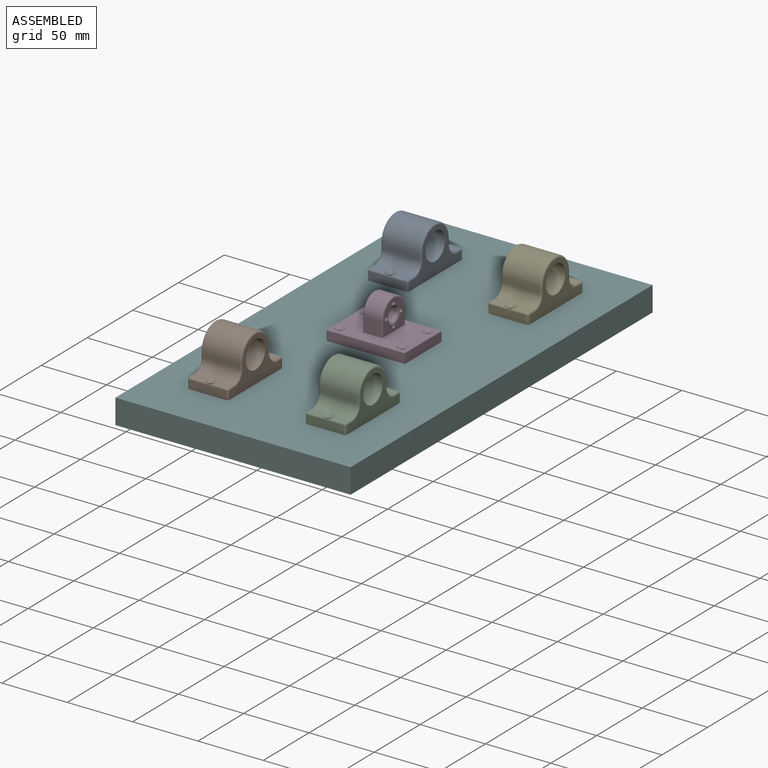
[diagram: assembled view]
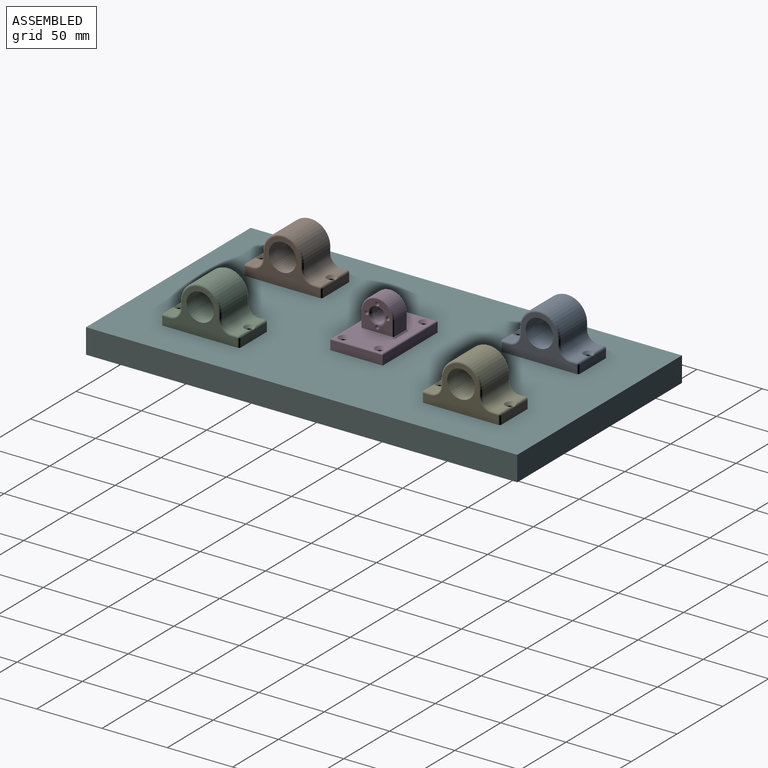
[diagram: assembled view, second angle]
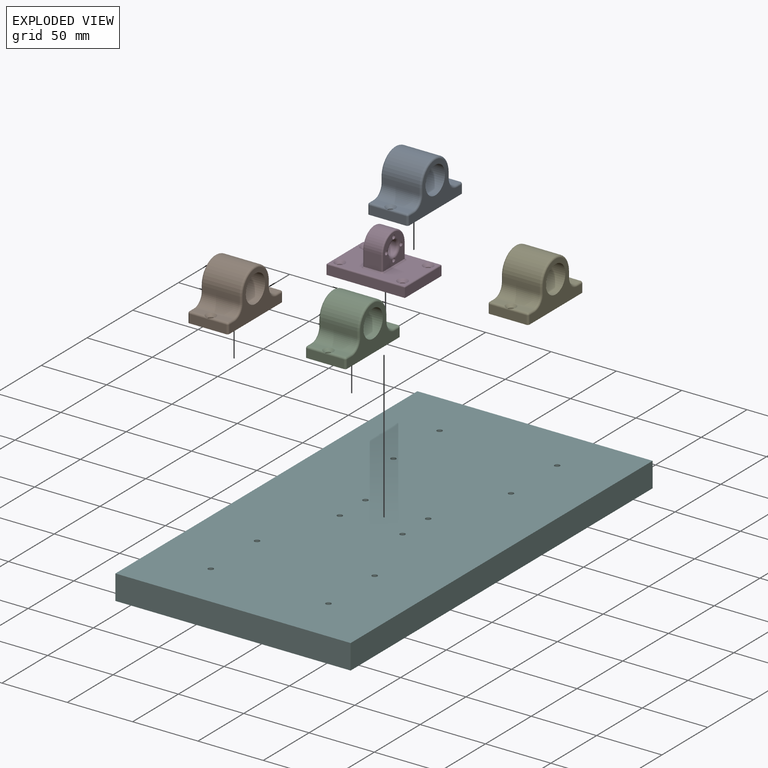
[diagram: exploded view]
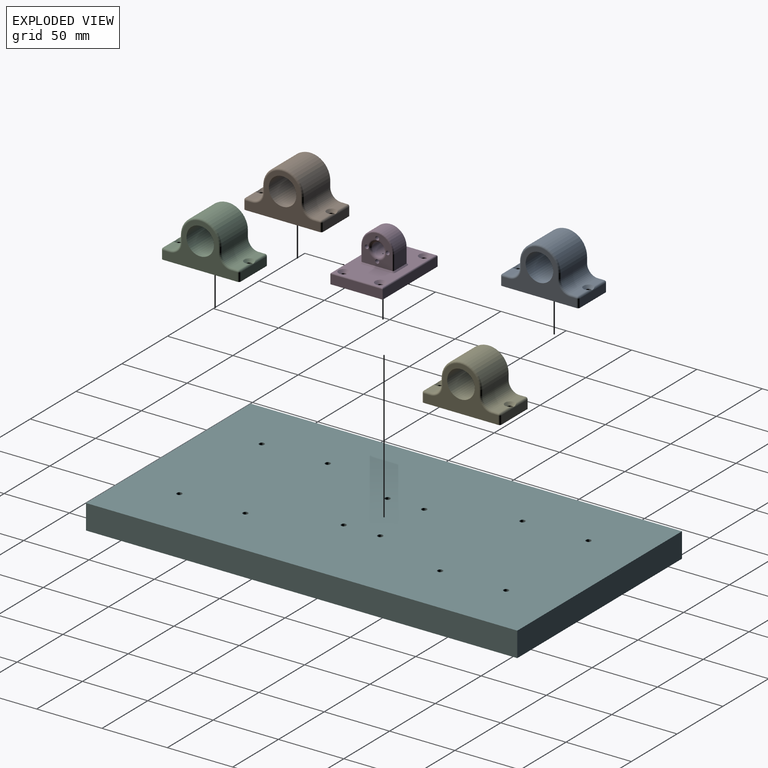
[diagram: exploded view, second angle]
ASSEMBLY  parts=6 mates=5
PART A: 47 faces, bbox 61.5x37.3x31 mm
  f0: cylinder r=9.5mm len=19mm, axis (0,0,1), area 59.7mm2, adj f12,f21
  f1: plane 11.67x5mm, normal (0,1,0), area 51.9mm2, adj f14,f19,f30,f35
  f2: plane 11.67x5mm, normal (0,1,0), area 51.9mm2, adj f13,f17,f34,f40
  f3: plane 60x31mm, normal (0,-1,0), area 1832.9mm2, adj f4,f10,f11,f12,f15,f16,f28,f31
  f4: plane 28x6.5mm, normal (1,0,0), area 182mm2, adj f3,f28,f34,f36
  f5: plane 11.67x5mm, normal (0,1,0), area 51.9mm2, adj f13,f17,f29,f34
  f6: plane 28x4.5mm, normal (1,0,0), area 126mm2, adj f7,f13,f24,f44
  f7: cylinder r=15.5mm len=31mm, axis (0,0,-1), area 1363.5mm2, adj f6,f8,f23,f46
  f8: plane 28x4.5mm, normal (-1,0,0), area 126mm2, adj f7,f14,f25,f45
  f9: plane 11.67x5mm, normal (0,1,0), area 51.9mm2, adj f14,f19,f35,f41
  f10: plane 28x6.5mm, normal (-1,0,0), area 182mm2, adj f3,f31,f35,f37
  f11: plane 57x34.5mm, normal (0,0,1), area 759.4mm2, adj f3,f22,f23,f24,f25,f26,f27,f28
  f12: plane 57x34.5mm, normal (0,0,-1), area 825.6mm2, adj f0,f3,f36,f37,f40,f41,f42,f43
  f13: cylinder r=8mm len=28mm, axis (0,0,-1), area 350mm2, adj f2,f5,f6,f18,f26,f42
  f14: cylinder r=8mm len=28mm, axis (0,0,1), area 350mm2, adj f1,f8,f9,f20,f27,f43
  f15: cylinder r=2mm len=6mm, axis (0,1,0), area 75.4mm2, adj f3,f19,f20
  f16: cylinder r=2mm len=6mm, axis (0,1,0), area 75.4mm2, adj f3,f17,f18
  f17: cone r=4mm half-angle=45deg, axis (0,1,0), area 36.9mm2, adj f2,f5,f16,f18,f34
  f18: bspline ~4.66x2.23mm, area 10.1mm2, adj f13,f16,f17
  f19: cone r=2mm half-angle=45deg, axis (0,1,0), area 36.9mm2, adj f1,f9,f15,f20,f35
  f20: bspline ~4.66x2.23mm, area 10.1mm2, adj f14,f15,f19
  f21: plane 21.1x21.1mm, normal (0,0,1), area 66.1mm2, adj f0,f22
  f22: cylinder r=10.55mm len=30mm, axis (0,0,1), area 1988.6mm2, adj f11,f21
  f23: torus R=14mm, axis (0,0,1), area 110.7mm2, adj f7,f11,f24,f25
  f24: cylinder r=1.5mm len=4.5mm, axis (0,-1,0), area 10.6mm2, adj f6,f11,f23,f26
  f25: cylinder r=1.5mm len=4.5mm, axis (0,1,0), area 10.6mm2, adj f8,f11,f23,f27
  f26: torus R=9.5mm, axis (0,0,1), area 31.6mm2, adj f11,f13,f24,f29
  f27: torus R=9.5mm, axis (0,0,1), area 31.6mm2, adj f11,f14,f25,f30
  f28: cylinder r=1.5mm len=6.5mm, axis (0,-1,0), area 15.3mm2, adj f3,f4,f11,f32
  f29: cylinder r=1.5mm len=5mm, axis (1,0,0), area 11.8mm2, adj f5,f11,f26,f32
  f30: cylinder r=1.5mm len=5mm, axis (1,0,0), area 11.8mm2, adj f1,f11,f27,f33
  f31: cylinder r=1.5mm len=6.5mm, axis (0,1,0), area 15.3mm2, adj f3,f10,f11,f33
  f32: sphere r=1.5mm, area 3.5mm2, adj f28,f29,f34
  f33: sphere r=1.5mm, area 3.5mm2, adj f30,f31,f35
  f34: cylinder r=1.5mm len=28mm, axis (0,0,-1), area 57.2mm2, adj f2,f4,f5,f17,f32,f38
  f35: cylinder r=1.5mm len=28mm, axis (0,0,1), area 57.2mm2, adj f1,f9,f10,f19,f33,f39
  f36: cylinder r=1.5mm len=6.5mm, axis (0,1,0), area 15.3mm2, adj f3,f4,f12,f38
  f37: cylinder r=1.5mm len=6.5mm, axis (0,-1,0), area 15.3mm2, adj f3,f10,f12,f39
  f38: sphere r=1.5mm, area 3.5mm2, adj f34,f36,f40
  f39: sphere r=1.5mm, area 4.2mm2, adj f35,f37,f41
  f40: cylinder r=1.5mm len=5mm, axis (-1,0,0), area 11.8mm2, adj f2,f12,f38,f42
  f41: cylinder r=1.5mm len=5mm, axis (-1,0,0), area 11.8mm2, adj f9,f12,f39,f43
  f42: torus R=9.5mm, axis (0,0,1), area 31.6mm2, adj f12,f13,f40,f44
  f43: torus R=9.5mm, axis (0,0,1), area 31.6mm2, adj f12,f14,f41,f45
  f44: cylinder r=1.5mm len=4.5mm, axis (0,1,0), area 10.6mm2, adj f6,f12,f42,f46
  f45: cylinder r=1.5mm len=4.5mm, axis (0,-1,0), area 10.6mm2, adj f8,f12,f43,f46
  f46: torus R=14mm, axis (0,0,1), area 110.7mm2, adj f7,f12,f44,f45
PART B: same geometry as A
PART C: same geometry as A
PART D: 71 faces, bbox 40x34x60 mm
  f0: cylinder r=1.5mm len=12mm, axis (0,0,1), area 113mm2, adj f14,f16,f25
  f1: cylinder r=1.5mm len=12mm, axis (0,0,1), area 113mm2, adj f14,f16,f32
  f2: cylinder r=1.5mm len=12mm, axis (0,0,1), area 113mm2, adj f14,f16,f39
  f3: cylinder r=1.5mm len=12mm, axis (0,0,1), area 113mm2, adj f14,f16,f46
  f4: cylinder r=5.05mm len=13mm, axis (0,0,1), area 412.5mm2, adj f15,f16
  f5: plane 40x7mm, normal (0,0,-1), area 280mm2, adj f9,f10,f12,f61
  f6: plane 13x11.5mm, normal (1,0,0), area 149.5mm2, adj f8,f53,f56,f63
  f7: plane 13x11.5mm, normal (-1,0,0), area 149.5mm2, adj f8,f55,f58,f70
  f8: cylinder r=12.5mm len=25mm, axis (0,0,-1), area 510.5mm2, adj f6,f7,f54,f57
  f9: plane 60x40mm, normal (0,-1,0), area 2349.7mm2, adj f5,f10,f12,f13,f17,f18,f19,f20
  f10: plane 60x7mm, normal (1,0,0), area 420mm2, adj f5,f9,f13,f62
  f11: plane 58x38mm, normal (0,1,0), area 1547.4mm2, adj f21,f22,f23,f24,f59,f60,f61,f62
  f12: plane 60x7mm, normal (-1,0,0), area 420mm2, adj f5,f9,f13,f59
  f13: plane 40x7mm, normal (0,0,1), area 280mm2, adj f9,f10,f12,f60
  f14: plane 23x23mm, normal (0,0,1), area 291.1mm2, adj f0,f1,f2,f3,f16,f56,f57,f58
  f15: plane 23x23mm, normal (0,0,-1), area 275.6mm2, adj f4,f26,f27,f28,f29,f30,f31,f33
  f16: torus R=7.05mm, axis (0,0,1), area 110.7mm2, adj f0,f1,f2,f3,f4,f14
  f17: cylinder r=2mm len=6mm, axis (0,1,0), area 75.4mm2, adj f9,f24
  f18: cylinder r=2mm len=6mm, axis (0,1,0), area 75.4mm2, adj f9,f23
  f19: cylinder r=2mm len=6mm, axis (0,1,0), area 75.4mm2, adj f9,f22
  f20: cylinder r=2mm len=6mm, axis (0,1,0), area 75.4mm2, adj f9,f21
  f21: cone r=2mm half-angle=45deg, axis (0,1,0), area 53.3mm2, adj f11,f20
  f22: cone r=2mm half-angle=45deg, axis (0,1,0), area 53.3mm2, adj f11,f19
  f23: cone r=2mm half-angle=45deg, axis (0,1,0), area 53.3mm2, adj f11,f18
  f24: cone r=2mm half-angle=45deg, axis (0,1,0), area 53.3mm2, adj f11,f17
  f25: plane 6.7x5.82mm, normal (0,0,-1), area 22.1mm2, adj f0,f26,f27,f28,f29,f30,f31
  f26: plane 3x2.89mm, normal (0.5,-0.86,0), area 10mm2, adj f15,f25,f27,f31
  f27: plane 3x2.91mm, normal (-0.5,-0.87,0), area 10mm2, adj f15,f25,f26,f28
  f28: plane 3.35x3mm, normal (-1,-0.01,0), area 10mm2, adj f15,f25,f27,f29
  f29: plane 3x2.89mm, normal (-0.5,0.86,0), area 10mm2, adj f15,f25,f28,f30
  f30: plane 3x2.91mm, normal (0.5,0.87,0), area 10mm2, adj f15,f25,f29,f31
  f31: plane 3.35x3mm, normal (1,0.01,0), area 10mm2, adj f15,f25,f26,f30
  f32: plane 6.7x5.82mm, normal (0,0,-1), area 22.1mm2, adj f1,f33,f34,f35,f36,f37,f38
  f33: plane 3x2.89mm, normal (-0.86,-0.5,0), area 10mm2, adj f15,f32,f34,f38
  f34: plane 3x2.91mm, normal (-0.87,0.5,0), area 10mm2, adj f15,f32,f33,f35
  f35: plane 3.35x3mm, normal (-0.01,1,0), area 10mm2, adj f15,f32,f34,f36
  f36: plane 3x2.89mm, normal (0.86,0.5,0), area 10mm2, adj f15,f32,f35,f37
  f37: plane 3x2.91mm, normal (0.87,-0.5,0), area 10mm2, adj f15,f32,f36,f38
  f38: plane 3.35x3mm, normal (0.01,-1,0), area 10mm2, adj f15,f32,f33,f37
  f39: plane 6.7x5.82mm, normal (0,0,-1), area 22.1mm2, adj f2,f40,f41,f42,f43,f44,f45
  f40: plane 3x2.89mm, normal (-0.5,0.86,0), area 10mm2, adj f15,f39,f41,f45
  f41: plane 3x2.91mm, normal (0.5,0.87,0), area 10mm2, adj f15,f39,f40,f42
  f42: plane 3.35x3mm, normal (1,0.01,0), area 10mm2, adj f15,f39,f41,f43
  f43: plane 3x2.89mm, normal (0.5,-0.86,0), area 10mm2, adj f15,f39,f42,f44
  f44: plane 3x2.91mm, normal (-0.5,-0.87,0), area 10mm2, adj f15,f39,f43,f45
  f45: plane 3.35x3mm, normal (-1,-0.01,0), area 10mm2, adj f15,f39,f40,f44
  f46: plane 6.7x5.82mm, normal (0,0,-1), area 22.1mm2, adj f3,f47,f48,f49,f50,f51,f52
  f47: plane 3.35x3mm, normal (-0.01,1,0), area 10mm2, adj f15,f46,f48,f52
  f48: plane 3x2.89mm, normal (0.86,0.5,0), area 10mm2, adj f15,f46,f47,f49
  f49: plane 3x2.91mm, normal (0.87,-0.5,0), area 10mm2, adj f15,f46,f48,f50
  f50: plane 3.35x3mm, normal (0.01,-1,0), area 10mm2, adj f15,f46,f49,f51
  f51: plane 3x2.89mm, normal (-0.86,-0.5,0), area 10mm2, adj f15,f46,f50,f52
  f52: plane 3x2.91mm, normal (-0.87,0.5,0), area 10mm2, adj f15,f46,f47,f51
  f53: cylinder r=1mm len=11.5mm, axis (0,-1,0), area 18.1mm2, adj f6,f15,f54,f65
  f54: torus R=11.5mm, axis (0,0,-1), area 59.9mm2, adj f8,f15,f53,f55
  f55: cylinder r=1mm len=11.5mm, axis (0,1,0), area 18.1mm2, adj f7,f15,f54,f69
  f56: cylinder r=1mm len=11.5mm, axis (0,-1,0), area 18.1mm2, adj f6,f14,f57,f64
  f57: torus R=11.5mm, axis (0,0,1), area 59.9mm2, adj f8,f14,f56,f58
  f58: cylinder r=1mm len=11.5mm, axis (0,1,0), area 18.1mm2, adj f7,f14,f57,f68
  f59: cylinder r=1mm len=60mm, axis (0,0,1), area 93.1mm2, adj f11,f12,f60,f61
  f60: cylinder r=1mm len=40mm, axis (1,0,0), area 61.7mm2, adj f11,f13,f59,f62
  f61: cylinder r=1mm len=40mm, axis (-1,0,0), area 61.7mm2, adj f5,f11,f59,f62
  f62: cylinder r=1mm len=60mm, axis (0,0,-1), area 93.1mm2, adj f10,f11,f60,f61
  f63: plane 13x1mm, normal (0.71,0.71,0), area 18.4mm2, adj f6,f11,f64,f65
  f64: cone r=2mm half-angle=45deg, axis (0,-1,0), area 3.3mm2, adj f11,f56,f63,f66
  f65: cone r=2mm half-angle=45deg, axis (0,-1,0), area 3.3mm2, adj f11,f53,f63,f67
  f66: plane 23x1mm, normal (0,0.71,0.71), area 32.5mm2, adj f11,f14,f64,f68
  f67: plane 23x1mm, normal (0,0.71,-0.71), area 32.5mm2, adj f11,f15,f65,f69
  f68: cone r=2mm half-angle=45deg, axis (0,-1,0), area 3.3mm2, adj f11,f58,f66,f70
  f69: cone r=2mm half-angle=45deg, axis (0,-1,0), area 3.3mm2, adj f11,f55,f67,f70
  f70: plane 13x1mm, normal (-0.71,0.71,0), area 18.4mm2, adj f7,f11,f68,f69
PART E: same geometry as A
PART F: 18 faces, bbox 180x330x19 mm
  f0: plane 330x180mm, normal (0,0,1), area 59249.2mm2, adj f2,f3,f4,f5,f6,f7,f8,f9
  f1: plane 330x180mm, normal (0,0,-1), area 59249.2mm2, adj f2,f3,f4,f5,f6,f7,f8,f9
  f2: plane 180x19mm, normal (0,-1,0), area 3420mm2, adj f0,f1,f3,f5
  f3: plane 330x19mm, normal (1,0,0), area 6270mm2, adj f0,f1,f2,f4
  f4: plane 180x19mm, normal (0,1,0), area 3420mm2, adj f0,f1,f3,f5
  f5: plane 330x19mm, normal (-1,0,0), area 6270mm2, adj f0,f1,f2,f4
  f6: cylinder r=2mm len=19mm, axis (0,0,1), area 238.8mm2, adj f0,f1
  f7: cylinder r=2mm len=19mm, axis (0,0,1), area 238.8mm2, adj f0,f1
  f8: cylinder r=2mm len=19mm, axis (0,0,1), area 238.8mm2, adj f0,f1
  f9: cylinder r=2mm len=19mm, axis (0,0,1), area 238.8mm2, adj f0,f1
  f10: cylinder r=2mm len=19mm, axis (0,0,1), area 238.8mm2, adj f0,f1
  f11: cylinder r=2mm len=19mm, axis (0,0,1), area 238.8mm2, adj f0,f1
  f12: cylinder r=2mm len=19mm, axis (0,0,1), area 238.8mm2, adj f0,f1
  f13: cylinder r=2mm len=19mm, axis (0,0,1), area 238.8mm2, adj f0,f1
  f14: cylinder r=2mm len=19mm, axis (0,0,1), area 238.8mm2, adj f0,f1
  f15: cylinder r=2mm len=19mm, axis (0,0,1), area 238.8mm2, adj f0,f1
  f16: cylinder r=2mm len=19mm, axis (0,0,1), area 238.8mm2, adj f0,f1
  f17: cylinder r=2mm len=19mm, axis (0,0,1), area 238.8mm2, adj f0,f1
PLACE A rot(axis=(0.58,0.58,0.58),120deg) t=(-25.06,143.79,-96.24)mm
PLACE B rot(axis=(0.58,0.58,0.58),120deg) t=(-25.06,-52.71,-96.24)mm
PLACE C rot(axis=(0.58,0.58,0.58),120deg) t=(64.94,-52.71,-96.24)mm
PLACE D rot(axis=(0.58,0.58,0.58),120deg) t=(5.44,55.54,-88.9)mm
PLACE E rot(axis=(0.58,0.58,0.58),120deg) t=(64.94,146.79,-96.24)mm
PLACE F t=(-285.65,45.54,-119.24)mm fixed
MATE fastened F.f11 <-> E.f19  axis (0,0,1) through (80.44,120.04,-100.24)mm
MATE fastened F.f6 <-> A.f17  axis (0,0,1) through (-9.56,170.54,-100.24)mm
MATE fastened F.f15 <-> C.f19  axis (0,0,1) through (80.44,-79.46,-100.24)mm
MATE fastened F.f14 <-> B.f19  axis (0,0,1) through (-9.56,-79.46,-100.24)mm
MATE fastened D.f23 <-> F.f9  axis (0,0,-1) through (59.44,31.54,-100.24)mm
